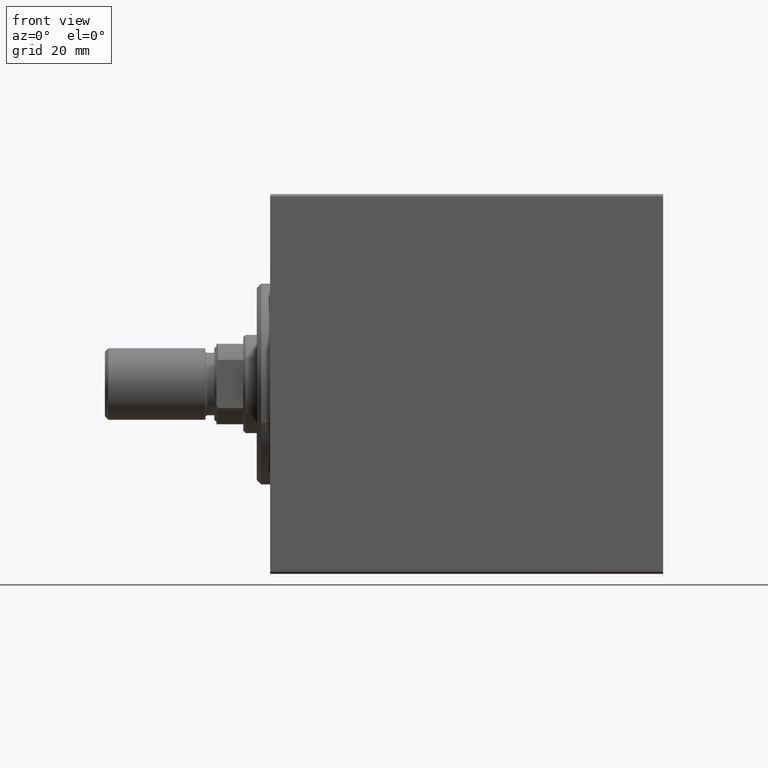
[diagram: clean part render]
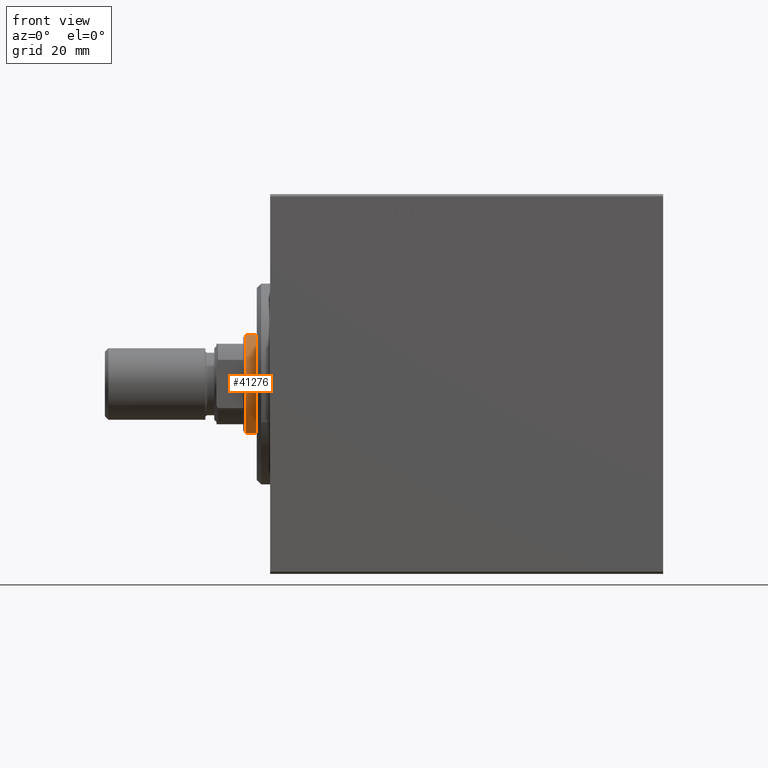
[diagram: same view with one face highlighted and labeled with its STEP entity id]
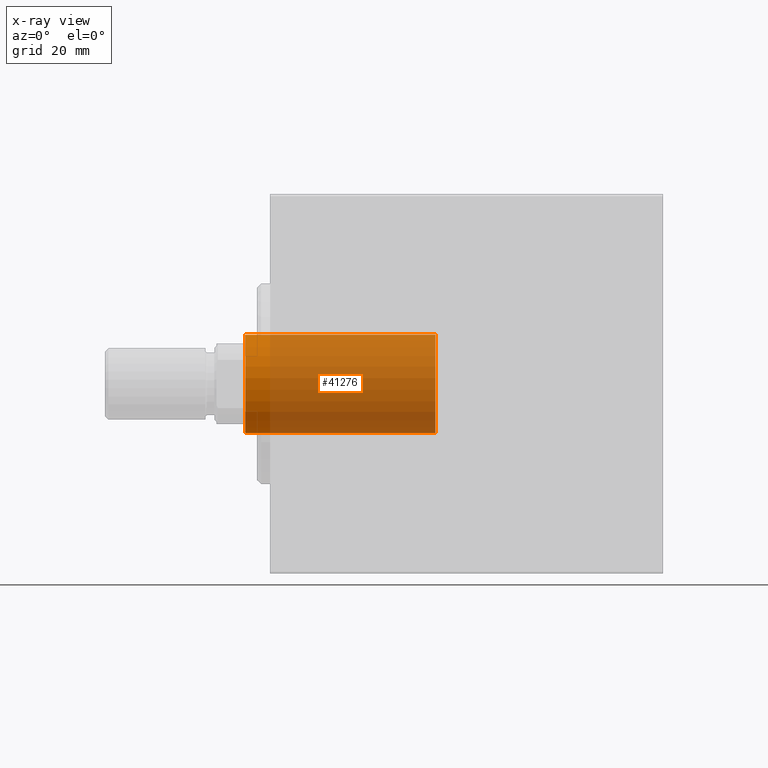
[diagram: x-ray of the same camera — body ghosted, the highlighted face saturated]
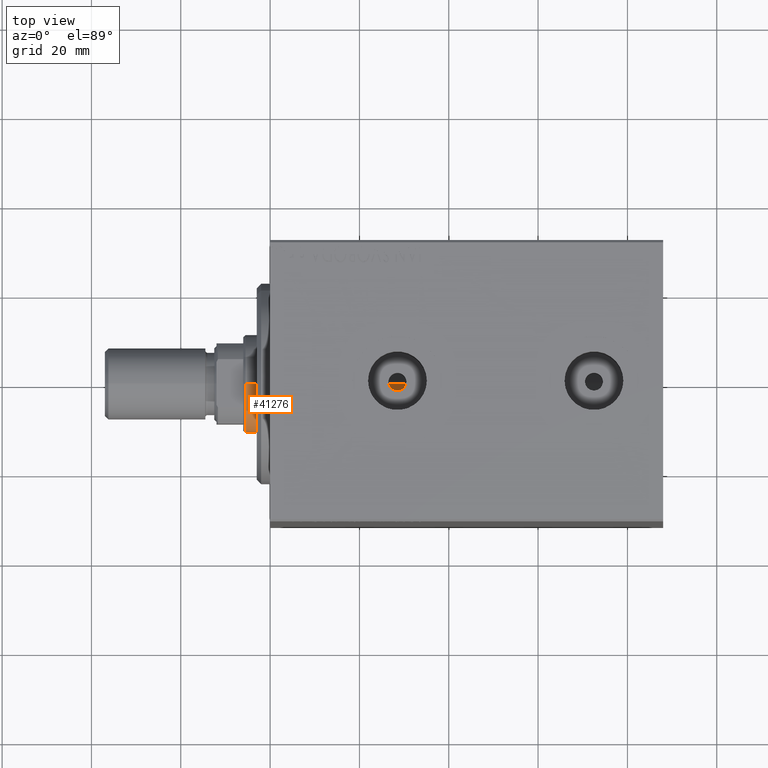
[diagram: same view with one face highlighted and labeled with its STEP entity id]
A machine part, front view. The second image highlights one B-rep face of the part: STEP entity #41276.
The next image is the same camera in x-ray: the body ghosted, the highlighted face saturated — about 87% of this face is hidden behind the body in this view.
A second angle (top view) of the same face is appended — the face is thin or edge-on in the first view.
In plain terms, the highlighted cylindrical surface (partial cylindrical patch) has radius 11 mm, axis along (1, -0, -0).
Its self-contained STEP definition (entity closure, byte-faithful):
#657 = DIRECTION ( 'NONE',  ( -0.000000000000000000, -0.000000000000000000, -1.000000000000000000 ) ) ;
#1039 = DIRECTION ( 'NONE',  ( -0.000000000000000000, -0.000000000000000000, -1.000000000000000000 ) ) ;
#1923 = VERTEX_POINT ( 'NONE', #27636 ) ;
#1982 = CIRCLE ( 'NONE', #17786, 11.00000000000000000 ) ;
#2783 = DIRECTION ( 'NONE',  ( 0.000000000000000000, 0.000000000000000000, 1.000000000000000000 ) ) ;
#3214 = CARTESIAN_POINT ( 'NONE',  ( 11.00000000000000000, 1.347111479062088405E-15, 39.00000000000000000 ) ) ;
#5385 = DIRECTION ( 'NONE',  ( 1.000000000000000000, 0.000000000000000000, 0.000000000000000000 ) ) ;
#6820 = ORIENTED_EDGE ( 'NONE', *, *, #30976, .T. ) ;
#7549 = EDGE_LOOP ( 'NONE', ( #19446, #6820, #29177, #20795 ) ) ;
#10013 = CYLINDRICAL_SURFACE ( 'NONE', #13003, 11.00000000000000000 ) ;
#10728 = CIRCLE ( 'NONE', #41595, 11.00000000000000000 ) ;
#10783 = EDGE_CURVE ( 'NONE', #14406, #23938, #34602, .T. ) ;
#13003 = AXIS2_PLACEMENT_3D ( 'NONE', #40591, #30704, #27104 ) ;
#14406 = VERTEX_POINT ( 'NONE', #34019 ) ;
#15042 = VECTOR ( 'NONE', #1039, 1000.000000000000000 ) ;
#17786 = AXIS2_PLACEMENT_3D ( 'NONE', #42698, #25850, #5385 ) ;
#18112 = LINE ( 'NONE', #41733, #15042 ) ;
#19446 = ORIENTED_EDGE ( 'NONE', *, *, #10783, .F. ) ;
#20795 = ORIENTED_EDGE ( 'NONE', *, *, #36836, .T. ) ;
#21041 = CARTESIAN_POINT ( 'NONE',  ( -11.00000000000000000, 0.000000000000000000, 39.00000000000000000 ) ) ;
#23938 = VERTEX_POINT ( 'NONE', #3214 ) ;
#25850 = DIRECTION ( 'NONE',  ( 0.000000000000000000, 0.000000000000000000, -1.000000000000000000 ) ) ;
#26880 = FACE_OUTER_BOUND ( 'NONE', #7549, .T. ) ;
#27104 = DIRECTION ( 'NONE',  ( -1.000000000000000000, 0.000000000000000000, 0.000000000000000000 ) ) ;
#27636 = CARTESIAN_POINT ( 'NONE',  ( -11.00000000000000000, 0.000000000000000000, 81.49999999999997158 ) ) ;
#28072 = CARTESIAN_POINT ( 'NONE',  ( 11.00000000000000000, 1.347111479062088405E-15, 81.99999999999998579 ) ) ;
#29177 = ORIENTED_EDGE ( 'NONE', *, *, #41036, .T. ) ;
#30704 = DIRECTION ( 'NONE',  ( -0.000000000000000000, -0.000000000000000000, -1.000000000000000000 ) ) ;
#30976 = EDGE_CURVE ( 'NONE', #14406, #1923, #1982, .T. ) ;
#32081 = VERTEX_POINT ( 'NONE', #21041 ) ;
#34019 = CARTESIAN_POINT ( 'NONE',  ( 11.00000000000000000, 1.347111479062088405E-15, 81.49999999999997158 ) ) ;
#34602 = LINE ( 'NONE', #28072, #37466 ) ;
#36836 = EDGE_CURVE ( 'NONE', #32081, #23938, #10728, .T. ) ;
#37466 = VECTOR ( 'NONE', #657, 1000.000000000000000 ) ;
#39660 = CARTESIAN_POINT ( 'NONE',  ( 0.000000000000000000, 0.000000000000000000, 39.00000000000000000 ) ) ;
#40543 = DIRECTION ( 'NONE',  ( 1.000000000000000000, 0.000000000000000000, 0.000000000000000000 ) ) ;
#40591 = CARTESIAN_POINT ( 'NONE',  ( 0.000000000000000000, 0.000000000000000000, 81.99999999999998579 ) ) ;
#41036 = EDGE_CURVE ( 'NONE', #1923, #32081, #18112, .T. ) ;
#41276 = ADVANCED_FACE ( 'NONE', ( #26880 ), #10013, .T. ) ;
#41595 = AXIS2_PLACEMENT_3D ( 'NONE', #39660, #2783, #40543 ) ;
#41733 = CARTESIAN_POINT ( 'NONE',  ( -11.00000000000000000, 0.000000000000000000, 81.99999999999998579 ) ) ;
#42698 = CARTESIAN_POINT ( 'NONE',  ( 0.000000000000000000, 0.000000000000000000, 81.49999999999997158 ) ) ;